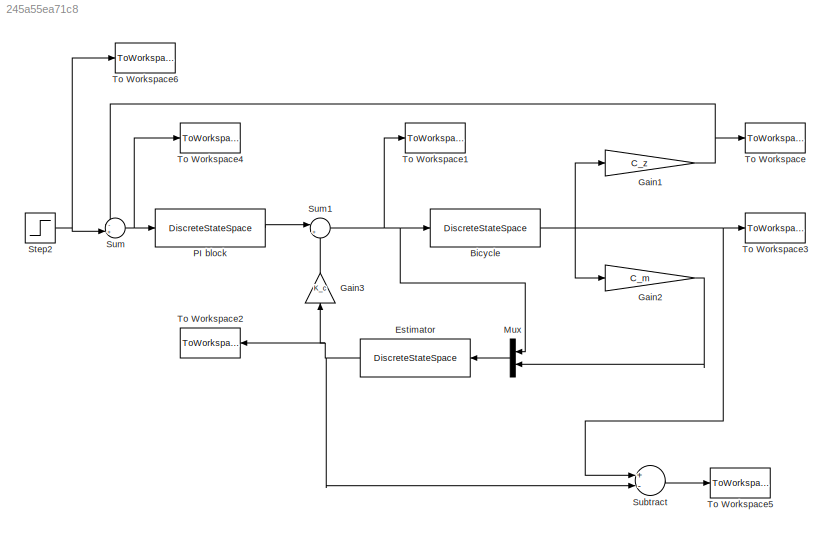
MODEL slx_245a55ea71c8
KIND model
BLOCK [DiscreteStateSpace] Bicycle
  A = A
  B = B
  C = eye(4)
  D = zeros(4, 1)
  SampleTime = dt
  X0 = x0
BLOCK [DiscreteStateSpace] Estimator
  A = A_e
  B = B_e
  C = eye(4)
  D = zeros(4, 3)
  SampleTime = dt
BLOCK [Gain] Gain1
  Gain = C_z
  Multiplication = Matrix(K*u)
  OutDataTypeStr = Inherit: Inherit via internal rule
  ParamDataTypeStr = Inherit: Inherit via internal rule
  SampleTime = dt
  SaturateOnIntegerOverflow = off
BLOCK [Gain] Gain2
  Gain = C_m
  Multiplication = Matrix(K*u)
  OutDataTypeStr = Inherit: Inherit via internal rule
  ParamDataTypeStr = Inherit: Inherit via internal rule
  SampleTime = dt
  SaturateOnIntegerOverflow = off
BLOCK [Gain] Gain3
  Gain = K_c
  Multiplication = Matrix(K*u)
  OutDataTypeStr = Inherit: Inherit via internal rule
  ParamDataTypeStr = Inherit: Inherit via internal rule
  SaturateOnIntegerOverflow = off
BLOCK [Mux] Mux
  DisplayOption = bar
  Inputs = 2
  Ports = [2, 1]
BLOCK [DiscreteStateSpace] PI block
  A = pid_ss.a
  B = pid_ss.b
  C = pid_ss.c
  D = pid_ss.d
  SampleTime = dt
BLOCK [Step] Step2
  After = 45*pi/180.
  SampleTime = dt
  Time = 0
BLOCK [Sum] Subtract
  InputSameDT = off
  Inputs = +-
  OutDataTypeStr = Inherit: Inherit via internal rule
  Ports = [2, 1]
  SaturateOnIntegerOverflow = off
BLOCK [Sum] Sum
  IconShape = round
  InputSameDT = off
  Inputs = -+|
  OutDataTypeStr = Inherit: Inherit via internal rule
  Ports = [2, 1]
  SaturateOnIntegerOverflow = off
BLOCK [Sum] Sum1
  IconShape = round
  InputSameDT = off
  Inputs = |++
  OutDataTypeStr = Inherit: Inherit via internal rule
  Ports = [2, 1]
  SaturateOnIntegerOverflow = off
BLOCK [ToWorkspace] To Workspace
  MaxDataPoints = inf
  Ports = [1]
  SampleTime = -1
  VariableName = yawrate
BLOCK [ToWorkspace] To Workspace1
  MaxDataPoints = inf
  Ports = [1]
  SampleTime = dt
  VariableName = u
BLOCK [ToWorkspace] To Workspace2
  MaxDataPoints = inf
  Ports = [1]
  SampleTime = dt
  VariableName = xe
BLOCK [ToWorkspace] To Workspace3
  MaxDataPoints = inf
  Ports = [1]
  SampleTime = dt
  VariableName = x
BLOCK [ToWorkspace] To Workspace4
  MaxDataPoints = inf
  Ports = [1]
  SampleTime = dt
  VariableName = e
BLOCK [ToWorkspace] To Workspace5
  MaxDataPoints = inf
  Ports = [1]
  SampleTime = dt
  VariableName = e_est
BLOCK [ToWorkspace] To Workspace6
  MaxDataPoints = inf
  Ports = [1]
  SampleTime = -1
  VariableName = yawrate_r
NET Bicycle:1 -> Gain1:1, Gain2:1, Subtract:1, To Workspace3:1
NET Estimator:1 -> Gain3:1, Subtract:2, To Workspace2:1
NET Gain1:1 -> Sum:1, To Workspace:1
LINE Gain2:1 -> Mux:2
LINE Gain3:1 -> Sum1:2
LINE Mux:1 -> Estimator:1
LINE PI block:1 -> Sum1:1
NET Step2:1 -> Sum:2, To Workspace6:1
LINE Subtract:1 -> To Workspace5:1
NET Sum1:1 -> Bicycle:1, Mux:1, To Workspace1:1
NET Sum:1 -> PI block:1, To Workspace4:1
note: NET lines group one-source signal fan-out (src -> all destinations, sorted); 1:1 wires keep LINE
